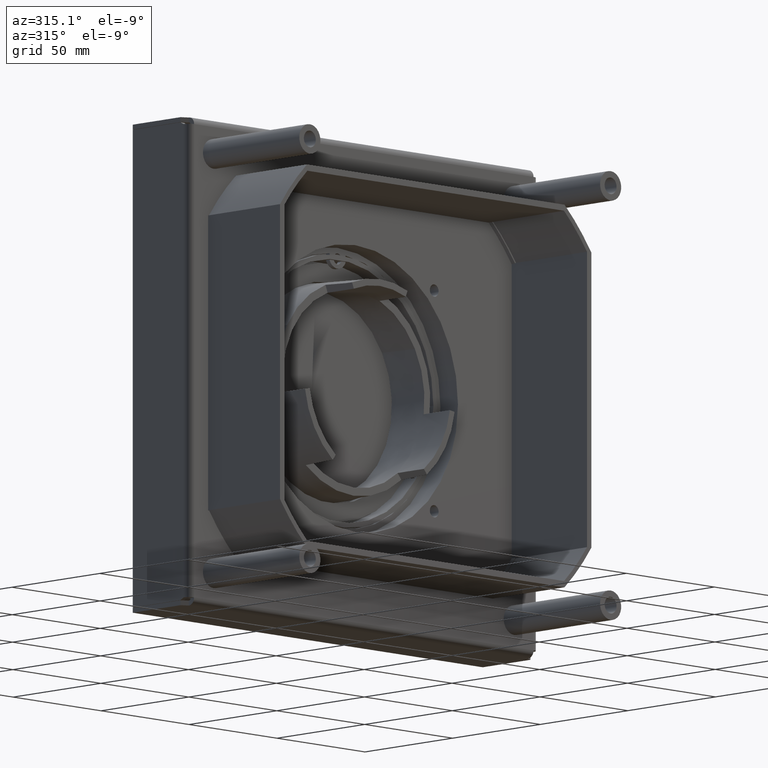
[diagram: clean part render]
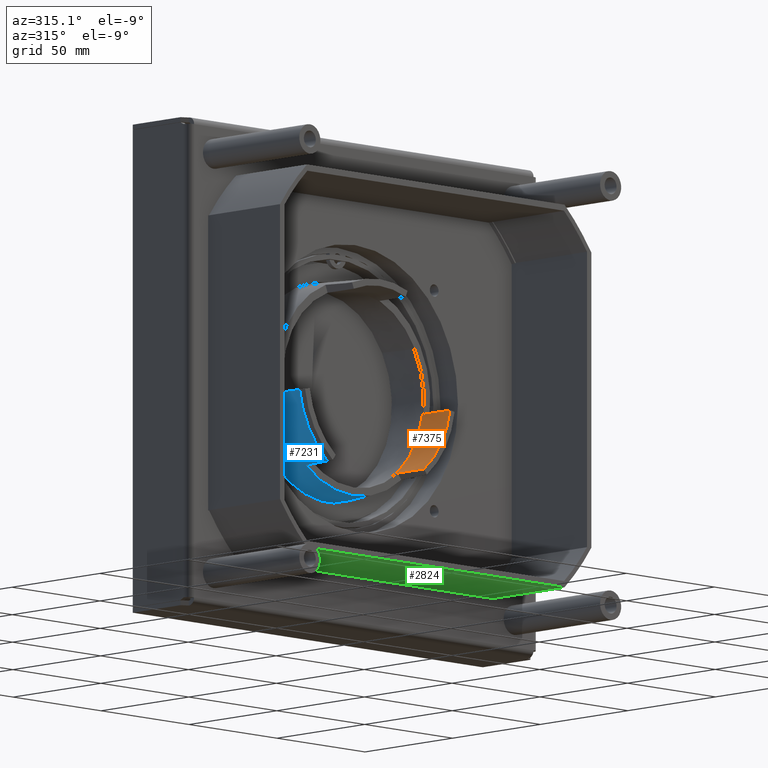
[diagram: same view with three faces highlighted in distinct colors, each labeled with its STEP entity id]
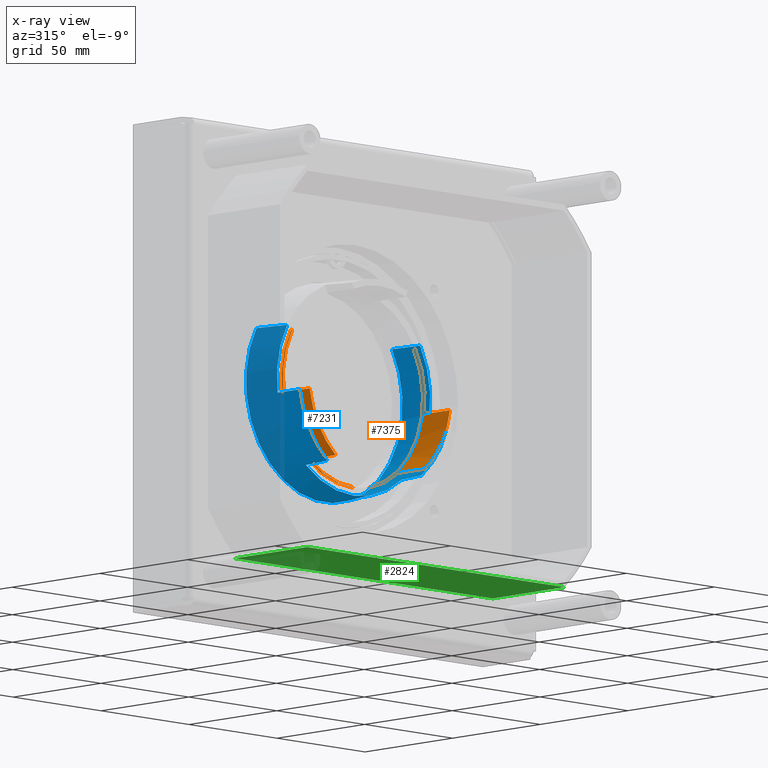
[diagram: x-ray of the same camera — body ghosted, the three highlighted faces saturated]
A machine part, auxiliary view with three faces highlighted in distinct colors.
The next image is the same camera in x-ray (body ghosted, the three faces saturated) — at least one of them is partly hidden behind the body in this view.
Their STEP definitions:

[orange] entity #7375 — the highlighted cylindrical surface (partial cylindrical patch) has radius 40.294 mm, axis along (0, 1, 0).
#6707=CARTESIAN_POINT('',(0.E0,1.674E1,0.E0));
#6708=DIRECTION('',(0.E0,1.E0,0.E0));
#6709=DIRECTION('',(1.478094111296E-1,0.E0,-9.890158633619E-1));
#6710=AXIS2_PLACEMENT_3D('',#6707,#6708,#6709);
#6752=CARTESIAN_POINT('',(0.E0,1.674E1,0.E0));
#6753=DIRECTION('',(0.E0,1.E0,0.E0));
#6754=DIRECTION('',(-5.E-1,0.E0,8.660254037844E-1));
#6755=AXIS2_PLACEMENT_3D('',#6752,#6753,#6754);
#6788=DIRECTION('',(0.E0,1.E0,0.E0));
#6789=VECTOR('',#6788,1.496E1);
#6790=CARTESIAN_POINT('',(3.153439042451E1,1.674E1,2.508358675388E1));
#6791=LINE('',#6790,#6789);
#6803=DIRECTION('',(0.E0,1.E0,0.E0));
#6804=VECTOR('',#6803,1.496E1);
#6805=CARTESIAN_POINT('',(5.955828134636E0,1.674E1,3.985137657742E1));
#6806=LINE('',#6805,#6804);
#6831=DIRECTION('',(0.E0,1.E0,0.E0));
#6832=VECTOR('',#6831,7.4E-1);
#6833=CARTESIAN_POINT('',(-2.014698553062E1,1.6E1,-3.489560255839E1));
#6834=LINE('',#6833,#6832);
#6838=CARTESIAN_POINT('',(0.E0,1.674E1,0.E0));
#6839=DIRECTION('',(0.E0,-1.E0,0.E0));
#6840=DIRECTION('',(7.826081568524E-1,0.E0,-6.225146366376E-1));
#6841=AXIS2_PLACEMENT_3D('',#6838,#6839,#6840);
#6846=DIRECTION('',(4.800964430812E-14,-1.E0,3.840771544649E-14));
#6847=VECTOR('',#6846,7.4E-1);
#6848=CARTESIAN_POINT('',(-2.014698553062E1,1.674E1,3.489560255839E1));
#6849=LINE('',#6848,#6847);
#6876=CARTESIAN_POINT('',(0.E0,1.6E1,0.E0));
#6877=DIRECTION('',(0.E0,-1.E0,0.E0));
#6878=DIRECTION('',(-5.E-1,0.E0,-8.660254037844E-1));
#6879=AXIS2_PLACEMENT_3D('',#6876,#6877,#6878);
#7008=DIRECTION('',(0.E0,1.E0,0.E0));
#7009=VECTOR('',#7008,1.496E1);
#7010=CARTESIAN_POINT('',(5.955828134636E0,1.674E1,-3.985137657742E1));
#7011=LINE('',#7010,#7009);
#7023=DIRECTION('',(0.E0,1.E0,0.E0));
#7024=VECTOR('',#7023,1.496E1);
#7025=CARTESIAN_POINT('',(3.153439042451E1,1.674E1,-2.508358675388E1));
#7026=LINE('',#7025,#7024);
#7051=CARTESIAN_POINT('',(0.E0,3.17E1,0.E0));
#7052=DIRECTION('',(0.E0,-1.E0,0.E0));
#7053=DIRECTION('',(1.478094111296E-1,0.E0,-9.890158633619E-1));
#7054=AXIS2_PLACEMENT_3D('',#7051,#7052,#7053);
#7059=CARTESIAN_POINT('',(0.E0,3.17E1,0.E0));
#7060=DIRECTION('',(0.E0,-1.E0,0.E0));
#7061=DIRECTION('',(7.826081568524E-1,0.E0,6.225146366376E-1));
#7062=AXIS2_PLACEMENT_3D('',#7059,#7060,#7061);
#7071=CARTESIAN_POINT('',(-2.014698553062E1,1.6E1,-3.489560255839E1));
#7072=CARTESIAN_POINT('',(-2.014698553062E1,1.674E1,-3.489560255839E1));
#7073=VERTEX_POINT('',#7071);
#7074=VERTEX_POINT('',#7072);
#7085=CARTESIAN_POINT('',(-2.014698553062E1,1.674E1,3.489560255839E1));
#7086=CARTESIAN_POINT('',(-2.014698553062E1,1.6E1,3.489560255839E1));
#7087=VERTEX_POINT('',#7085);
#7088=VERTEX_POINT('',#7086);
#7092=CARTESIAN_POINT('',(5.955828134636E0,3.17E1,-3.985137657742E1));
#7094=VERTEX_POINT('',#7092);
#7098=CARTESIAN_POINT('',(3.153439042451E1,3.17E1,-2.508358675388E1));
#7100=VERTEX_POINT('',#7098);
#7104=CARTESIAN_POINT('',(5.955828134636E0,1.674E1,-3.985137657742E1));
#7106=VERTEX_POINT('',#7104);
#7108=CARTESIAN_POINT('',(3.153439042451E1,1.674E1,-2.508358675388E1));
#7110=VERTEX_POINT('',#7108);
#7112=CARTESIAN_POINT('',(3.153439042451E1,1.674E1,2.508358675388E1));
#7114=VERTEX_POINT('',#7112);
#7116=CARTESIAN_POINT('',(5.955828134636E0,1.674E1,3.985137657742E1));
#7118=VERTEX_POINT('',#7116);
#7128=CARTESIAN_POINT('',(5.955828134636E0,3.17E1,3.985137657742E1));
#7130=VERTEX_POINT('',#7128);
#7140=CARTESIAN_POINT('',(3.153439042451E1,3.17E1,2.508358675388E1));
#7142=VERTEX_POINT('',#7140);
#7349=CARTESIAN_POINT('',(0.E0,1.7752E1,0.E0));
#7350=DIRECTION('',(0.E0,-1.E0,0.E0));
#7351=DIRECTION('',(1.E0,0.E0,0.E0));
#7352=AXIS2_PLACEMENT_3D('',#7349,#7350,#7351);
#7353=CYLINDRICAL_SURFACE('',#7352,4.029397106124E1);
#7355=ORIENTED_EDGE('',*,*,#7354,.T.);
#7356=ORIENTED_EDGE('',*,*,#7273,.F.);
#7358=ORIENTED_EDGE('',*,*,#7357,.T.);
#7360=ORIENTED_EDGE('',*,*,#7359,.T.);
#7362=ORIENTED_EDGE('',*,*,#7361,.F.);
#7363=ORIENTED_EDGE('',*,*,#7261,.T.);
#7364=ORIENTED_EDGE('',*,*,#7315,.T.);
#7366=ORIENTED_EDGE('',*,*,#7365,.T.);
#7367=ORIENTED_EDGE('',*,*,#7340,.F.);
#7368=ORIENTED_EDGE('',*,*,#7297,.F.);
#7370=ORIENTED_EDGE('',*,*,#7369,.T.);
#7372=ORIENTED_EDGE('',*,*,#7371,.F.);
#7373=EDGE_LOOP('',(#7355,#7356,#7358,#7360,#7362,#7363,#7364,#7366,#7367,#7368,
#7370,#7372));
#7374=FACE_OUTER_BOUND('',#7373,.F.);
#6711=CIRCLE('',#6710,4.029397106124E1);
#6756=CIRCLE('',#6755,4.029397106124E1);
#6842=CIRCLE('',#6841,4.029397106124E1);
#6880=CIRCLE('',#6879,4.029397106124E1);
#7055=CIRCLE('',#7054,4.029397106124E1);
#7063=CIRCLE('',#7062,4.029397106124E1);
#7261=EDGE_CURVE('',#7110,#7114,#6842,.T.);
#7273=EDGE_CURVE('',#7106,#7074,#6711,.T.);
#7297=EDGE_CURVE('',#7087,#7118,#6756,.T.);
#7315=EDGE_CURVE('',#7114,#7142,#6791,.T.);
#7340=EDGE_CURVE('',#7118,#7130,#6806,.T.);
#7354=EDGE_CURVE('',#7073,#7074,#6834,.T.);
#7357=EDGE_CURVE('',#7106,#7094,#7011,.T.);
#7359=EDGE_CURVE('',#7094,#7100,#7055,.T.);
#7361=EDGE_CURVE('',#7110,#7100,#7026,.T.);
#7365=EDGE_CURVE('',#7142,#7130,#7063,.T.);
#7369=EDGE_CURVE('',#7087,#7088,#6849,.T.);
#7371=EDGE_CURVE('',#7073,#7088,#6880,.T.);
#7375=ADVANCED_FACE('',(#7374),#7353,.F.);

[blue] entity #7231 — the highlighted conical surface has half-angle 3 deg.
#6607=DIRECTION('',(2.616797812147E-2,9.986295347546E-1,4.532426763774E-2));
#6608=VECTOR('',#6607,1.676297307201E1);
#6609=CARTESIAN_POINT('',(-2.225E1,0.E0,-3.853813046841E1));
#6610=LINE('',#6609,#6608);
#6614=CARTESIAN_POINT('',(0.E0,-5.684341886081E-13,0.E0));
#6615=DIRECTION('',(0.E0,-1.E0,0.E0));
#6616=DIRECTION('',(-5.E-1,0.E0,-8.660254037844E-1));
#6617=AXIS2_PLACEMENT_3D('',#6614,#6615,#6616);
#6622=DIRECTION('',(-2.616797812147E-2,-9.986295347546E-1,4.532426763774E-2));
#6623=VECTOR('',#6622,1.676297307201E1);
#6624=CARTESIAN_POINT('',(-2.181134688740E1,1.674E1,3.777836099049E1));
#6625=LINE('',#6624,#6623);
#6629=CARTESIAN_POINT('',(0.E0,1.674E1,0.E0));
#6630=DIRECTION('',(0.E0,1.E0,0.E0));
#6631=DIRECTION('',(-5.E-1,0.E0,8.660254037844E-1));
#6632=AXIS2_PLACEMENT_3D('',#6629,#6630,#6631);
#6637=CARTESIAN_POINT('',(0.E0,2.862170503158E1,0.E0));
#6638=DIRECTION('',(0.E0,-1.E0,0.E0));
#6639=DIRECTION('',(7.826081568524E-1,0.E0,6.225146366376E-1));
#6640=AXIS2_PLACEMENT_3D('',#6637,#6638,#6639);
#6645=CARTESIAN_POINT('',(0.E0,2.862170503158E1,0.E0));
#6646=DIRECTION('',(0.E0,-1.E0,0.E0));
#6647=DIRECTION('',(1.478094111296E-1,0.E0,-9.890158633619E-1));
#6648=AXIS2_PLACEMENT_3D('',#6645,#6646,#6647);
#6653=CARTESIAN_POINT('',(0.E0,1.674E1,0.E0));
#6654=DIRECTION('',(0.E0,1.E0,0.E0));
#6655=DIRECTION('',(1.478094111296E-1,0.E0,-9.890158633619E-1));
#6656=AXIS2_PLACEMENT_3D('',#6653,#6654,#6655);
#6685=CARTESIAN_POINT('',(0.E0,1.674E1,0.E0));
#6686=DIRECTION('',(0.E0,-1.E0,0.E0));
#6687=DIRECTION('',(7.826081568524E-1,0.E0,-6.225146366376E-1));
#6688=AXIS2_PLACEMENT_3D('',#6685,#6686,#6687);
#6767=DIRECTION('',(4.095854625240E-2,-9.986295347546E-1,3.257989878366E-2));
#6768=VECTOR('',#6767,1.189801084194E1);
#6769=CARTESIAN_POINT('',(3.365215074465E1,2.862170503159E1,2.676812937542E1));
#6770=LINE('',#6769,#6768);
#6824=DIRECTION('',(7.735746873175E-3,-9.986295347546E-1,5.176109094849E-2));
#6825=VECTOR('',#6824,1.189801084194E1);
#6826=CARTESIAN_POINT('',(6.355804678573E0,2.862170503159E1,4.252768212456E1));
#6827=LINE('',#6826,#6825);
#6987=DIRECTION('',(7.735746873175E-3,-9.986295347546E-1,-5.176109094849E-2));
#6988=VECTOR('',#6987,1.189801084194E1);
#6989=CARTESIAN_POINT('',(6.355804678573E0,2.862170503159E1,-4.252768212456E1));
#6990=LINE('',#6989,#6988);
#7044=DIRECTION('',(4.095854625240E-2,-9.986295347546E-1,-3.257989878366E-2));
#7045=VECTOR('',#7044,1.189801084194E1);
#7046=CARTESIAN_POINT('',(3.365215074465E1,2.862170503159E1,-2.676812937542E1));
#7047=LINE('',#7046,#7045);
#7067=CARTESIAN_POINT('',(-2.225E1,0.E0,-3.853813046841E1));
#7068=CARTESIAN_POINT('',(-2.181134688740E1,1.674E1,-3.777836099049E1));
#7069=VERTEX_POINT('',#7067);
#7070=VERTEX_POINT('',#7068);
#7081=CARTESIAN_POINT('',(-2.181134688740E1,1.674E1,3.777836099049E1));
#7082=CARTESIAN_POINT('',(-2.225E1,0.E0,3.853813046841E1));
#7083=VERTEX_POINT('',#7081);
#7084=VERTEX_POINT('',#7082);
#7095=CARTESIAN_POINT('',(6.355804678573E0,2.862170503159E1,-4.252768212456E1));
#7096=VERTEX_POINT('',#7095);
#7101=CARTESIAN_POINT('',(3.365215074465E1,2.862170503159E1,-2.676812937542E1));
#7102=VERTEX_POINT('',#7101);
#7103=CARTESIAN_POINT('',(6.447844678741E0,1.674E1,-4.314353614586E1));
#7105=VERTEX_POINT('',#7103);
#7107=CARTESIAN_POINT('',(3.413947597203E1,1.674E1,-2.715576536437E1));
#7109=VERTEX_POINT('',#7107);
#7111=CARTESIAN_POINT('',(3.413947597203E1,1.674E1,2.715576536437E1));
#7113=VERTEX_POINT('',#7111);
#7115=CARTESIAN_POINT('',(6.447844678741E0,1.674E1,4.314353614586E1));
#7117=VERTEX_POINT('',#7115);
#7131=CARTESIAN_POINT('',(6.355804678573E0,2.862170503159E1,4.252768212456E1));
#7132=VERTEX_POINT('',#7131);
#7147=CARTESIAN_POINT('',(3.365215074465E1,2.862170503159E1,2.676812937542E1));
#7148=VERTEX_POINT('',#7147);
#7201=CARTESIAN_POINT('',(0.E0,1.431085251579E1,0.E0));
#7202=DIRECTION('',(0.E0,-1.E0,0.E0));
#7203=DIRECTION('',(1.E0,0.E0,0.E0));
#7204=AXIS2_PLACEMENT_3D('',#7201,#7202,#7203);
#7205=CONICAL_SURFACE('',#7204,4.375E1,3.E0);
#7207=ORIENTED_EDGE('',*,*,#7206,.F.);
#7208=ORIENTED_EDGE('',*,*,#7194,.T.);
#7210=ORIENTED_EDGE('',*,*,#7209,.F.);
#7212=ORIENTED_EDGE('',*,*,#7211,.T.);
#7214=ORIENTED_EDGE('',*,*,#7213,.F.);
#7216=ORIENTED_EDGE('',*,*,#7215,.F.);
#7218=ORIENTED_EDGE('',*,*,#7217,.T.);
#7220=ORIENTED_EDGE('',*,*,#7219,.F.);
#7222=ORIENTED_EDGE('',*,*,#7221,.F.);
#7224=ORIENTED_EDGE('',*,*,#7223,.F.);
#7226=ORIENTED_EDGE('',*,*,#7225,.T.);
#7228=ORIENTED_EDGE('',*,*,#7227,.T.);
#7229=EDGE_LOOP('',(#7207,#7208,#7210,#7212,#7214,#7216,#7218,#7220,#7222,#7224,
#7226,#7228));
#7230=FACE_OUTER_BOUND('',#7229,.F.);
#6618=CIRCLE('',#6617,4.45E1);
#6633=CIRCLE('',#6632,4.362269377480E1);
#6641=CIRCLE('',#6640,4.3E1);
#6649=CIRCLE('',#6648,4.3E1);
#6657=CIRCLE('',#6656,4.362269377480E1);
#6689=CIRCLE('',#6688,4.362269377480E1);
#7194=EDGE_CURVE('',#7069,#7084,#6618,.T.);
#7206=EDGE_CURVE('',#7069,#7070,#6610,.T.);
#7209=EDGE_CURVE('',#7083,#7084,#6625,.T.);
#7211=EDGE_CURVE('',#7083,#7117,#6633,.T.);
#7213=EDGE_CURVE('',#7132,#7117,#6827,.T.);
#7215=EDGE_CURVE('',#7148,#7132,#6641,.T.);
#7217=EDGE_CURVE('',#7148,#7113,#6770,.T.);
#7219=EDGE_CURVE('',#7109,#7113,#6689,.T.);
#7221=EDGE_CURVE('',#7102,#7109,#7047,.T.);
#7223=EDGE_CURVE('',#7096,#7102,#6649,.T.);
#7225=EDGE_CURVE('',#7096,#7105,#6990,.T.);
#7227=EDGE_CURVE('',#7105,#7070,#6657,.T.);
#7231=ADVANCED_FACE('',(#7230),#7205,.T.);

[green] entity #2824 — the highlighted planar face has unit normal (0, 0, -1).
#2305=DIRECTION('',(0.E0,0.E0,-1.E0));
#2306=VECTOR('',#2305,1.464923206178E2);
#2307=CARTESIAN_POINT('',(7.8E1,0.E0,7.324616030892E1));
#2308=LINE('',#2307,#2306);
#2309=DIRECTION('',(0.E0,-1.E0,0.E0));
#2310=VECTOR('',#2309,5.E-1);
#2311=CARTESIAN_POINT('',(7.8E1,0.E0,-7.324616030892E1));
#2312=LINE('',#2311,#2310);
#2313=DIRECTION('',(0.E0,-1.E0,0.E0));
#2314=VECTOR('',#2313,4.05E1);
#2315=CARTESIAN_POINT('',(7.8E1,-5.E-1,-7.324616030892E1));
#2316=LINE('',#2315,#2314);
#2317=DIRECTION('',(0.E0,0.E0,1.E0));
#2318=VECTOR('',#2317,1.464923206178E2);
#2319=CARTESIAN_POINT('',(7.8E1,-4.1E1,-7.324616030892E1));
#2320=LINE('',#2319,#2318);
#2321=DIRECTION('',(0.E0,-1.E0,0.E0));
#2322=VECTOR('',#2321,4.05E1);
#2323=CARTESIAN_POINT('',(7.8E1,-5.E-1,7.324616030892E1));
#2324=LINE('',#2323,#2322);
#2325=DIRECTION('',(-2.842170943040E-14,-1.E0,0.E0));
#2326=VECTOR('',#2325,5.E-1);
#2327=CARTESIAN_POINT('',(7.8E1,0.E0,7.324616030892E1));
#2328=LINE('',#2327,#2326);
#2496=CARTESIAN_POINT('',(7.8E1,-4.1E1,7.324616030892E1));
#2498=VERTEX_POINT('',#2496);
#2512=CARTESIAN_POINT('',(7.8E1,-4.1E1,-7.324616030892E1));
#2514=VERTEX_POINT('',#2512);
#2556=CARTESIAN_POINT('',(7.8E1,-5.E-1,7.324616030892E1));
#2558=VERTEX_POINT('',#2556);
#2559=CARTESIAN_POINT('',(7.8E1,0.E0,7.324616030892E1));
#2561=VERTEX_POINT('',#2559);
#2572=CARTESIAN_POINT('',(7.8E1,-5.E-1,-7.324616030892E1));
#2574=VERTEX_POINT('',#2572);
#2575=CARTESIAN_POINT('',(7.8E1,0.E0,-7.324616030892E1));
#2577=VERTEX_POINT('',#2575);
#2809=CARTESIAN_POINT('',(7.8E1,0.E0,7.324616030892E1));
#2810=DIRECTION('',(1.E0,0.E0,0.E0));
#2811=DIRECTION('',(0.E0,0.E0,-1.E0));
#2812=AXIS2_PLACEMENT_3D('',#2809,#2810,#2811);
#2813=PLANE('',#2812);
#2814=ORIENTED_EDGE('',*,*,#2592,.T.);
#2815=ORIENTED_EDGE('',*,*,#2804,.T.);
#2816=ORIENTED_EDGE('',*,*,#2765,.T.);
#2817=ORIENTED_EDGE('',*,*,#2675,.T.);
#2819=ORIENTED_EDGE('',*,*,#2818,.F.);
#2821=ORIENTED_EDGE('',*,*,#2820,.F.);
#2822=EDGE_LOOP('',(#2814,#2815,#2816,#2817,#2819,#2821));
#2823=FACE_OUTER_BOUND('',#2822,.F.);
#2592=EDGE_CURVE('',#2561,#2577,#2308,.T.);
#2675=EDGE_CURVE('',#2514,#2498,#2320,.T.);
#2765=EDGE_CURVE('',#2574,#2514,#2316,.T.);
#2804=EDGE_CURVE('',#2577,#2574,#2312,.T.);
#2818=EDGE_CURVE('',#2558,#2498,#2324,.T.);
#2820=EDGE_CURVE('',#2561,#2558,#2328,.T.);
#2824=ADVANCED_FACE('',(#2823),#2813,.T.);